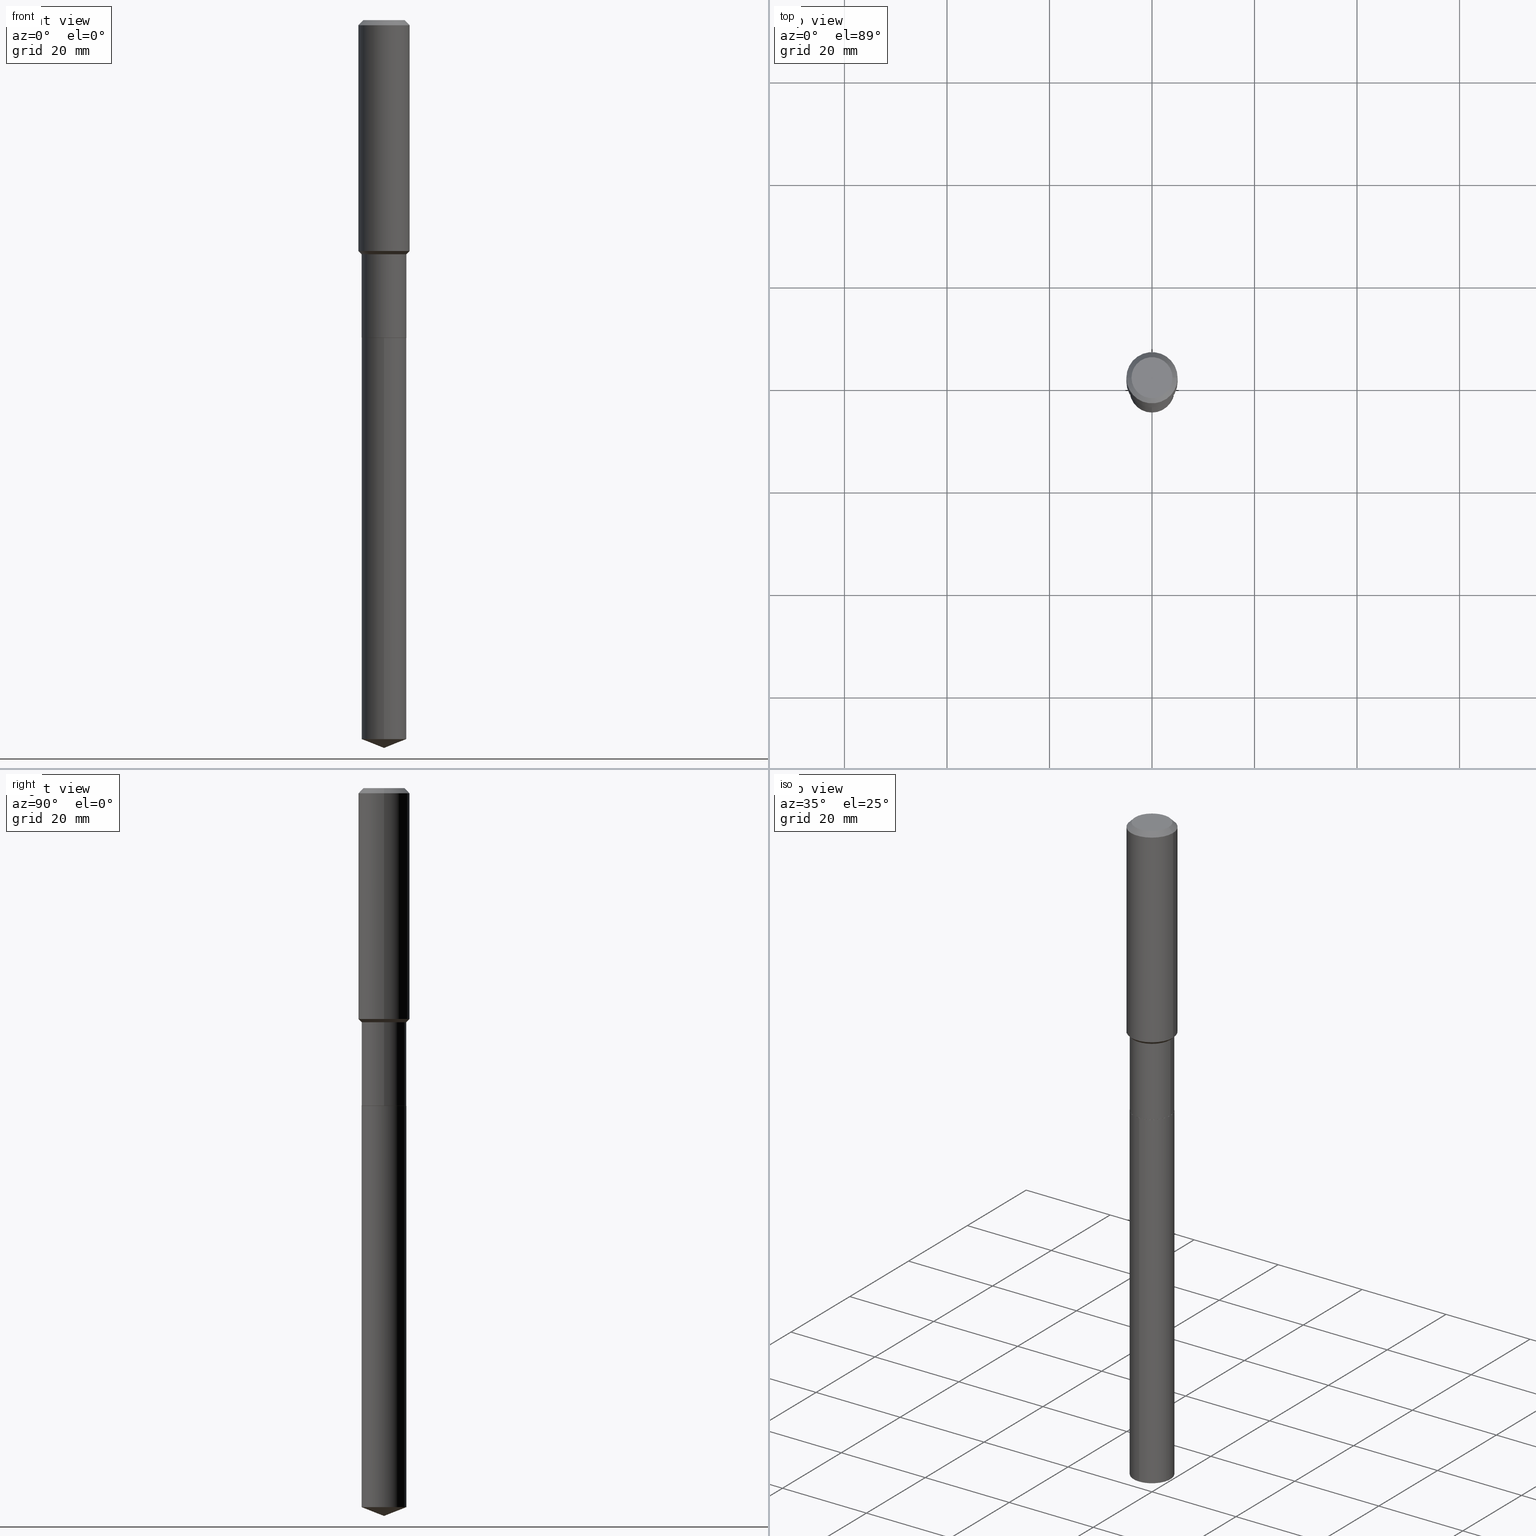
[diagram: canonical four-view strip — front | top / right | iso, engineering-drawing reading convention]
A machine part, canonical four-view strip (front | top / right | iso — engineering-drawing reading convention). The complete STEP part file that produces these views, byte-faithful:
ISO-10303-21;
HEADER;
FILE_DESCRIPTION (( 'STEP AP203' ),
    '1' );
FILE_NAME ('56490.STEP',
    '2024-04-24T18:13:39',
    ( '' ),
    ( '' ),
    'SwSTEP 2.0',
    'SolidWorks 2023',
    '' );
FILE_SCHEMA (( 'CONFIG_CONTROL_DESIGN' ));
ENDSEC;

DATA;
#1 = FACE_OUTER_BOUND ( 'NONE', #368, .T. ) ;
#2 = FACE_OUTER_BOUND ( 'NONE', #469, .T. ) ;
#3 = DIRECTION ( 'NONE',  ( -2.445468806185136597E-29, 3.491481338843145583E-15, 1.000000000000000000 ) ) ;
#4 = CARTESIAN_POINT ( 'NONE',  ( 5.967922074614205116E-29, -8.520611059312809095E-15, -2.440399999999999014 ) ) ;
#5 = DIRECTION ( 'NONE',  ( -2.445468806185136597E-29, 3.491481338843145583E-15, 1.000000000000000000 ) ) ;
#6 = DIRECTION ( 'NONE',  ( 1.000000000000000000, 0.000000000000000000, 0.000000000000000000 ) ) ;
#7 = AXIS2_PLACEMENT_3D ( 'NONE', #361, #391, #206 ) ;
#8 = EDGE_LOOP ( 'NONE', ( #474, #190, #370, #475 ) ) ;
#9 = ORGANIZATION ( 'UNSPECIFIED', 'UNSPECIFIED', '' ) ;
#10 = DIRECTION ( 'NONE',  ( -2.445468806185136597E-29, 3.491481338843145583E-15, 1.000000000000000000 ) ) ;
#11 = CARTESIAN_POINT ( 'NONE',  ( 5.969144809017297917E-29, -8.522356799982231388E-15, -2.440899999999999181 ) ) ;
#12 = VERTEX_POINT ( 'NONE', #116 ) ;
#13 = EDGE_CURVE ( 'NONE', #12, #36, #321, .T. ) ;
#14 = DIRECTION ( 'NONE',  ( 1.000000000000000000, -6.982962677686265922E-15, 4.876223630392693006E-29 ) ) ;
#15 = DIRECTION ( 'NONE',  ( 0.7071067811867889352, -2.468850131084785360E-15, 0.7071067811863060992 ) ) ;
#16 = APPLICATION_PROTOCOL_DEFINITION ( 'international standard', 'config_control_design', 1994, #232 ) ;
#17 = DIRECTION ( 'NONE',  ( -2.445468806185136877E-29, 3.491481338843145188E-15, 1.000000000000000000 ) ) ;
#18 = DATE_AND_TIME ( #431, #369 ) ;
#19 = AXIS2_PLACEMENT_3D ( 'NONE', #127, #358, #44 ) ;
#20 = CIRCLE ( 'NONE', #154, 0.1718999999999999140 ) ;
#21 = LINE ( 'NONE', #457, #188 ) ;
#22 = APPROVAL_ROLE ( '' ) ;
#23 = DIRECTION ( 'NONE',  ( -2.445456552962842404E-29, 3.491498886154880768E-15, 1.000000000000000000 ) ) ;
#24 = FACE_OUTER_BOUND ( 'NONE', #445, .T. ) ;
#25 = DIRECTION ( 'NONE',  ( 1.000000000000000000, -6.982962677686266711E-15, 4.876176775795935793E-29 ) ) ;
#26 = ORIENTED_EDGE ( 'NONE', *, *, #178, .T. ) ;
#27 = APPROVAL_ROLE ( '' ) ;
#28 = CIRCLE ( 'NONE', #338, 0.1718999999999999695 ) ;
#29 = CC_DESIGN_APPROVAL ( #349, ( #115 ) ) ;
#30 = ORIENTED_EDGE ( 'NONE', *, *, #440, .T. ) ;
#31 = ADVANCED_FACE ( 'NONE', ( #2 ), #452, .T. ) ;
#32 = EDGE_CURVE ( 'NONE', #297, #155, #50, .T. ) ;
#33 = ORIENTED_EDGE ( 'NONE', *, *, #425, .F. ) ;
#34 = ORIENTED_EDGE ( 'NONE', *, *, #113, .F. ) ;
#35 = AXIS2_PLACEMENT_3D ( 'NONE', #205, #125, #386 ) ;
#36 = VERTEX_POINT ( 'NONE', #170 ) ;
#37 = CONICAL_SURFACE ( 'NONE', #225, 0.1968500000000000250, 0.7853981633974452814 ) ;
#38 = EDGE_CURVE ( 'NONE', #162, #396, #47, .T. ) ;
#39 = DIRECTION ( 'NONE',  ( -6.982962677686266711E-15, -1.000000000000000000, 3.178415350394722068E-15 ) ) ;
#40 = ORIENTED_EDGE ( 'NONE', *, *, #352, .T. ) ;
#41 = LOCAL_TIME ( 14, 13, 39.00000000000000000, #288 ) ;
#42 = DIRECTION ( 'NONE',  ( 1.000000000000000000, -6.982962677686264344E-15, 0.000000000000000000 ) ) ;
#43 = EDGE_CURVE ( 'NONE', #233, #345, #224, .T. ) ;
#44 = DIRECTION ( 'NONE',  ( 1.000000000000000000, -6.982962677686265922E-15, 4.876176775795935793E-29 ) ) ;
#45 = CARTESIAN_POINT ( 'NONE',  ( 1.221422962771747687E-15, 0.1718999999999807626, -5.522786789241792782 ) ) ;
#46 = APPROVAL ( #157, 'UNSPECIFIED' ) ;
#47 = LINE ( 'NONE', #385, #342 ) ;
#48 = VECTOR ( 'NONE', #68, 39.37007874015748143 ) ;
#49 = EDGE_CURVE ( 'NONE', #187, #448, #305, .T. ) ;
#50 = LINE ( 'NONE', #95, #71 ) ;
#51 = DIRECTION ( 'NONE',  ( -2.445468806185136597E-29, 3.491481338843145583E-15, 1.000000000000000000 ) ) ;
#52 = PRODUCT_DEFINITION_FORMATION_WITH_SPECIFIED_SOURCE ( 'ANY', '', #86, .NOT_KNOWN. ) ;
#53 = ORIENTED_EDGE ( 'NONE', *, *, #196, .F. ) ;
#54 = CARTESIAN_POINT ( 'NONE',  ( 5.967922074614205116E-29, -8.520611059312809095E-15, -2.440399999999999014 ) ) ;
#55 = LINE ( 'NONE', #176, #453 ) ;
#56 = SECURITY_CLASSIFICATION_LEVEL ( 'unclassified' ) ;
#57 = DIRECTION ( 'NONE',  ( -2.445468806185136877E-29, 3.491481338843145188E-15, 1.000000000000000000 ) ) ;
#58 =( LENGTH_UNIT ( ) NAMED_UNIT ( * ) SI_UNIT ( $, .METRE. ) );
#59 = FACE_OUTER_BOUND ( 'NONE', #8, .T. ) ;
#60 = PERSON_AND_ORGANIZATION_ROLE ( 'design_owner' ) ;
#61 = CONICAL_SURFACE ( 'NONE', #90, 0.1713999999999999690, 0.7853981633977896726 ) ;
#62 = DIRECTION ( 'NONE',  ( 1.000000000000000000, -6.982962677686265922E-15, 0.000000000000000000 ) ) ;
#63 = DIRECTION ( 'NONE',  ( 1.000000000000000000, -6.982962677686270655E-15, 0.000000000000000000 ) ) ;
#64 = ORIENTED_EDGE ( 'NONE', *, *, #147, .T. ) ;
#65 = PERSON_AND_ORGANIZATION ( #355, #9 ) ;
#66 = ADVANCED_BREP_SHAPE_REPRESENTATION ( '56490', ( #401, #249, #246 ), #375 ) ;
#67 = DIMENSIONAL_EXPONENTS ( 1.000000000000000000, 0.000000000000000000, 0.000000000000000000, 0.000000000000000000, 0.000000000000000000, 0.000000000000000000, 0.000000000000000000 ) ;
#68 = DIRECTION ( 'NONE',  ( -6.497071151882118258E-15, -0.9304175679820243516, 0.3665012267242976907 ) ) ;
#69 = ORIENTED_EDGE ( 'NONE', *, *, #266, .F. ) ;
#70 = LINE ( 'NONE', #264, #92 ) ;
#71 = VECTOR ( 'NONE', #419, 39.37007874015748143 ) ;
#72 = AXIS2_PLACEMENT_3D ( 'NONE', #11, #172, #390 ) ;
#73 = EDGE_LOOP ( 'NONE', ( #366, #461, #259, #435 ) ) ;
#74 = ADVANCED_FACE ( 'NONE', ( #456 ), #280, .T. ) ;
#75 = ORIENTED_EDGE ( 'NONE', *, *, #263, .F. ) ;
#76 = VECTOR ( 'NONE', #354, 39.37007874015748854 ) ;
#77 = LOCAL_TIME ( 14, 13, 39.00000000000000000, #294 ) ;
#78 = ORIENTED_EDGE ( 'NONE', *, *, #186, .T. ) ;
#79 = FACE_OUTER_BOUND ( 'NONE', #270, .T. ) ;
#80 = CC_DESIGN_PERSON_AND_ORGANIZATION_ASSIGNMENT ( #150, #298, ( #52 ) ) ;
#81 = CARTESIAN_POINT ( 'NONE',  ( 0.1968500000000000250, -1.512055823412797189E-15, -0.03937000000000024508 ) ) ;
#82 = EDGE_CURVE ( 'NONE', #162, #437, #194, .T. ) ;
#83 = ORIENTED_EDGE ( 'NONE', *, *, #102, .T. ) ;
#84 = DIRECTION ( 'NONE',  ( -2.445468806185136597E-29, 3.491481338843145583E-15, 1.000000000000000000 ) ) ;
#85 = ORIENTED_EDGE ( 'NONE', *, *, #38, .F. ) ;
#86 = PRODUCT ( '56490', '56490', '', ( #359 ) ) ;
#87 = ADVANCED_FACE ( 'NONE', ( #282 ), #392, .T. ) ;
#88 = CARTESIAN_POINT ( 'NONE',  ( -0.1968500000000002192, -4.794311649429267908E-15, -1.773749999999999272 ) ) ;
#89 = CARTESIAN_POINT ( 'NONE',  ( 4.398664741685204254E-29, -6.280127484177163852E-15, -1.798699999999999521 ) ) ;
#90 = AXIS2_PLACEMENT_3D ( 'NONE', #254, #133, #428 ) ;
#91 = FACE_OUTER_BOUND ( 'NONE', #377, .T. ) ;
#92 = VECTOR ( 'NONE', #481, 39.37007874015748854 ) ;
#93 = SECURITY_CLASSIFICATION ( '', '', #56 ) ;
#94 = LINE ( 'NONE', #454, #417 ) ;
#95 = CARTESIAN_POINT ( 'NONE',  ( -0.1968500000000000250, 1.237136582792286225E-15, -0.03937000000000024508 ) ) ;
#96 = EDGE_CURVE ( 'NONE', #137, #220, #94, .T. ) ;
#97 = DIRECTION ( 'NONE',  ( -2.445468806185136597E-29, 3.491481338843145583E-15, 1.000000000000000000 ) ) ;
#98 = CARTESIAN_POINT ( 'NONE',  ( 4.337650294970884222E-29, -6.193015024773027274E-15, -1.773749999999999272 ) ) ;
#99 = AXIS2_PLACEMENT_3D ( 'NONE', #363, #23, #468 ) ;
#100 = CARTESIAN_POINT ( 'NONE',  ( 9.627810689950943645E-31, -1.374596203102555315E-16, -0.03937000000000024508 ) ) ;
#101 = ORIENTED_EDGE ( 'NONE', *, *, #352, .F. ) ;
#102 = EDGE_CURVE ( 'NONE', #364, #297, #130, .T. ) ;
#103 = CARTESIAN_POINT ( 'NONE',  ( -1.200371284294134346E-15, -0.1719000000000193429, -5.522786789241790117 ) ) ;
#104 = VECTOR ( 'NONE', #57, 39.37007874015748143 ) ;
#105 = LOCAL_TIME ( 14, 13, 39.00000000000000000, #106 ) ;
#106 = COORDINATED_UNIVERSAL_TIME_OFFSET ( 5, 0, .BEHIND. ) ;
#107 = ORIENTED_EDGE ( 'NONE', *, *, #178, .F. ) ;
#108 = ORIENTED_EDGE ( 'NONE', *, *, #186, .F. ) ;
#109 = AXIS2_PLACEMENT_3D ( 'NONE', #214, #394, #63 ) ;
#110 = APPROVAL ( #324, 'UNSPECIFIED' ) ;
#111 = AXIS2_PLACEMENT_3D ( 'NONE', #424, #141, #25 ) ;
#112 = ORIENTED_EDGE ( 'NONE', *, *, #96, .T. ) ;
#113 = EDGE_CURVE ( 'NONE', #187, #12, #21, .T. ) ;
#114 = APPLICATION_PROTOCOL_DEFINITION ( 'international standard', 'config_control_design', 1994, #269 ) ;
#115 = PRODUCT_DEFINITION ( 'UNKNOWN', '', #52, #121 ) ;
#116 = CARTESIAN_POINT ( 'NONE',  ( 1.221422962771747292E-15, 0.1718999999999914208, -2.440899999999999626 ) ) ;
#117 = DIRECTION ( 'NONE',  ( -2.445468806185136597E-29, 3.491481338843145583E-15, 1.000000000000000000 ) ) ;
#118 = VECTOR ( 'NONE', #184, 39.37007874015748143 ) ;
#119 = AXIS2_PLACEMENT_3D ( 'NONE', #156, #303, #407 ) ;
#120 = CC_DESIGN_SECURITY_CLASSIFICATION ( #93, ( #52 ) ) ;
#121 = DESIGN_CONTEXT ( 'detailed design', #232, 'design' ) ;
#122 = EDGE_CURVE ( 'NONE', #437, #442, #286, .T. ) ;
#123 = DIRECTION ( 'NONE',  ( -6.982962677686266711E-15, -1.000000000000000000, 3.178415350394722068E-15 ) ) ;
#124 = DIRECTION ( 'NONE',  ( 0.7071067811865484609, -2.468850131082267316E-15, 0.7071067811865464625 ) ) ;
#125 = DIRECTION ( 'NONE',  ( -2.445468806185136597E-29, 3.491481338843145583E-15, 1.000000000000000000 ) ) ;
#126 = CARTESIAN_POINT ( 'NONE',  ( 5.969144809017296796E-29, -8.522356799982229810E-15, -2.440899999999998737 ) ) ;
#127 = CARTESIAN_POINT ( 'NONE',  ( 8.685805640443478176E-29, -4.631943866647868288E-15, -2.440899999999999181 ) ) ;
#128 = CARTESIAN_POINT ( 'NONE',  ( 0.1718999999999999140, -7.480498768471432304E-15, -1.798699999999999521 ) ) ;
#129 = DIRECTION ( 'NONE',  ( -2.445456552962842404E-29, 3.491498886154880374E-15, 1.000000000000000000 ) ) ;
#130 = CIRCLE ( 'NONE', #360, 0.1574800000000000089 ) ;
#131 = PERSON_AND_ORGANIZATION_ROLE ( 'classification_officer' ) ;
#132 = AXIS2_PLACEMENT_3D ( 'NONE', #89, #51, #42 ) ;
#133 = DIRECTION ( 'NONE',  ( -2.445468806185136597E-29, 3.491481338843145583E-15, 1.000000000000000000 ) ) ;
#134 = ADVANCED_FACE ( 'NONE', ( #177 ), #322, .F. ) ;
#135 = PERSON_AND_ORGANIZATION ( #355, #9 ) ;
#136 = ADVANCED_FACE ( 'NONE', ( #59 ), #61, .T. ) ;
#137 = VERTEX_POINT ( 'NONE', #216 ) ;
#138 = CARTESIAN_POINT ( 'NONE',  ( 5.969144809017297917E-29, -8.522356799982231388E-15, -2.440899999999999181 ) ) ;
#139 = LINE ( 'NONE', #463, #48 ) ;
#140 = LINE ( 'NONE', #291, #118 ) ;
#141 = DIRECTION ( 'NONE',  ( -2.445468806185136597E-29, 3.491481338843145583E-15, 1.000000000000000000 ) ) ;
#142 = ORIENTED_EDGE ( 'NONE', *, *, #263, .T. ) ;
#143 = PERSON_AND_ORGANIZATION_ROLE ( 'creator' ) ;
#144 = DIRECTION ( 'NONE',  ( -2.445456552962842404E-29, 3.491498886154880374E-15, 1.000000000000000000 ) ) ;
#145 = AXIS2_PLACEMENT_3D ( 'NONE', #164, #310, #449 ) ;
#146 = VECTOR ( 'NONE', #381, 39.37007874015748143 ) ;
#147 = EDGE_CURVE ( 'NONE', #36, #12, #28, .T. ) ;
#148 = CARTESIAN_POINT ( 'NONE',  ( -8.260646227755212521E-28, 1.179414043772741541E-13, 33.77957874015748274 ) ) ;
#149 = EDGE_LOOP ( 'NONE', ( #367, #226, #193, #261 ) ) ;
#150 = PERSON_AND_ORGANIZATION ( #355, #9 ) ;
#151 = DIRECTION ( 'NONE',  ( -2.445468806185136597E-29, 3.491481338843145583E-15, 1.000000000000000000 ) ) ;
#152 = ORIENTED_EDGE ( 'NONE', *, *, #333, .T. ) ;
#153 = CIRCLE ( 'NONE', #145, 0.1718999999999999140 ) ;
#154 = AXIS2_PLACEMENT_3D ( 'NONE', #207, #426, #195 ) ;
#155 = VERTEX_POINT ( 'NONE', #326 ) ;
#156 = CARTESIAN_POINT ( 'NONE',  ( -9.427742298522567634E-47, 1.346031739168368355E-32, 3.855188123715870730E-18 ) ) ;
#157 = APPROVAL_STATUS ( 'not_yet_approved' ) ;
#158 = CARTESIAN_POINT ( 'NONE',  ( 4.398664741685204254E-29, -6.280127484177163852E-15, -1.798699999999999521 ) ) ;
#159 = ORIENTED_EDGE ( 'NONE', *, *, #38, .T. ) ;
#160 = CONICAL_SURFACE ( 'NONE', #306, 0.1718999999999999140, 0.7853981633974497223 ) ;
#161 = EDGE_CURVE ( 'NONE', #345, #437, #140, .T. ) ;
#162 = VERTEX_POINT ( 'NONE', #432 ) ;
#163 = EDGE_LOOP ( 'NONE', ( #439, #83 ) ) ;
#164 = CARTESIAN_POINT ( 'NONE',  ( 4.398664741685204254E-29, -6.280127484177163852E-15, -1.798699999999999521 ) ) ;
#165 = CARTESIAN_POINT ( 'NONE',  ( 9.627810689950943645E-31, -1.374596203102555315E-16, -0.03937000000000024508 ) ) ;
#166 = DIRECTION ( 'NONE',  ( 1.000000000000000000, -6.982962677686269077E-15, 0.000000000000000000 ) ) ;
#167 = CONICAL_SURFACE ( 'NONE', #293, 0.1968500000000000250, 0.7853981633974452814 ) ;
#168 = DIRECTION ( 'NONE',  ( 1.000000000000000000, -6.982962677686265922E-15, 0.000000000000000000 ) ) ;
#169 = DIRECTION ( 'NONE',  ( -6.982962677686266711E-15, -1.000000000000000000, 3.178415350394722068E-15 ) ) ;
#170 = CARTESIAN_POINT ( 'NONE',  ( -1.200371284294209288E-15, -0.1719000000000085182, -2.440899999999998737 ) ) ;
#171 = DIRECTION ( 'NONE',  ( -2.445468806185136597E-29, 3.491481338843145583E-15, 1.000000000000000000 ) ) ;
#172 = DIRECTION ( 'NONE',  ( 2.445456552962842404E-29, -3.491498886154880374E-15, -1.000000000000000000 ) ) ;
#173 = CC_DESIGN_PERSON_AND_ORGANIZATION_ASSIGNMENT ( #135, #460, ( #52 ) ) ;
#174 = DIRECTION ( 'NONE',  ( -2.445468806185136597E-29, 3.491481338843145583E-15, 1.000000000000000000 ) ) ;
#175 = DIRECTION ( 'NONE',  ( 1.000000000000000000, -6.982962677686266711E-15, 4.876176775795935793E-29 ) ) ;
#176 = CARTESIAN_POINT ( 'NONE',  ( 0.1968500000000000250, -1.487948651171581601E-15, -0.03937000000000024508 ) ) ;
#177 = FACE_OUTER_BOUND ( 'NONE', #163, .T. ) ;
#178 = EDGE_CURVE ( 'NONE', #155, #220, #438, .T. ) ;
#179 = EDGE_CURVE ( 'NONE', #448, #187, #313, .T. ) ;
#180 = DATE_TIME_ROLE ( 'creation_date' ) ;
#181 = CC_DESIGN_APPROVAL ( #46, ( #93 ) ) ;
#182 = CARTESIAN_POINT ( 'NONE',  ( -1.200371284294209288E-15, -0.1719000000000085182, -2.440899999999998737 ) ) ;
#183 = EDGE_LOOP ( 'NONE', ( #344, #408, #255, #234 ) ) ;
#184 = DIRECTION ( 'NONE',  ( -0.7071067811867889352, 7.493145998871226640E-15, 0.7071067811863060992 ) ) ;
#185 = EDGE_LOOP ( 'NONE', ( #108, #235, #309 ) ) ;
#186 = EDGE_CURVE ( 'NONE', #260, #187, #258, .T. ) ;
#187 = VERTEX_POINT ( 'NONE', #45 ) ;
#188 = VECTOR ( 'NONE', #129, 39.37007874015748143 ) ;
#189 = CC_DESIGN_APPROVAL ( #110, ( #52 ) ) ;
#190 = ORIENTED_EDGE ( 'NONE', *, *, #161, .T. ) ;
#191 = CARTESIAN_POINT ( 'NONE',  ( 0.1718999999999999140, -7.480498768471432304E-15, -1.798699999999999521 ) ) ;
#192 = ORIENTED_EDGE ( 'NONE', *, *, #96, .F. ) ;
#193 = ORIENTED_EDGE ( 'NONE', *, *, #196, .T. ) ;
#194 = CIRCLE ( 'NONE', #256, 0.1718999999999999417 ) ;
#195 = DIRECTION ( 'NONE',  ( 1.000000000000000000, -6.982962677686264344E-15, 0.000000000000000000 ) ) ;
#196 = EDGE_CURVE ( 'NONE', #220, #155, #402, .T. ) ;
#197 = LINE ( 'NONE', #487, #146 ) ;
#198 = EDGE_CURVE ( 'NONE', #437, #162, #387, .T. ) ;
#199 = AXIS2_PLACEMENT_3D ( 'NONE', #482, #412, #405 ) ;
#200 = CC_DESIGN_PERSON_AND_ORGANIZATION_ASSIGNMENT ( #289, #131, ( #93 ) ) ;
#201 = FACE_OUTER_BOUND ( 'NONE', #271, .T. ) ;
#202 = DIRECTION ( 'NONE',  ( 1.000000000000000000, -6.982962677686266711E-15, 4.876176775795936353E-29 ) ) ;
#203 = CARTESIAN_POINT ( 'NONE',  ( 1.350576505325825204E-28, -1.928276109187539136E-14, -5.522786789241791006 ) ) ;
#204 = CARTESIAN_POINT ( 'NONE',  ( 1.367138520165069045E-28, -1.951913886058242754E-14, -5.590499999999999581 ) ) ;
#205 = CARTESIAN_POINT ( 'NONE',  ( 0.000000000000000000, 0.000000000000000000, 0.000000000000000000 ) ) ;
#206 = DIRECTION ( 'NONE',  ( -6.982962677686266711E-15, -1.000000000000000000, 3.178415350394722068E-15 ) ) ;
#207 = CARTESIAN_POINT ( 'NONE',  ( 4.398664741685204254E-29, -6.280127484177163852E-15, -1.798699999999999521 ) ) ;
#208 = CC_DESIGN_PERSON_AND_ORGANIZATION_ASSIGNMENT ( #389, #143, ( #115 ) ) ;
#209 = FACE_OUTER_BOUND ( 'NONE', #356, .T. ) ;
#210 = CARTESIAN_POINT ( 'NONE',  ( -9.427742298522567634E-47, 1.346031739168368355E-32, 3.855188123715870730E-18 ) ) ;
#211 = FACE_OUTER_BOUND ( 'NONE', #300, .T. ) ;
#212 = LINE ( 'NONE', #128, #238 ) ;
#213 = ADVANCED_FACE ( 'NONE', ( #211 ), #318, .F. ) ;
#214 = CARTESIAN_POINT ( 'NONE',  ( 5.969144809017296796E-29, -8.522356799982229810E-15, -2.440899999999998737 ) ) ;
#215 = CYLINDRICAL_SURFACE ( 'NONE', #287, 0.1718999999999999417 ) ;
#216 = CARTESIAN_POINT ( 'NONE',  ( 0.1968500000000002192, -7.567611227875569671E-15, -1.773749999999999272 ) ) ;
#217 =( NAMED_UNIT ( * ) PLANE_ANGLE_UNIT ( ) SI_UNIT ( $, .RADIAN. ) );
#218 = LINE ( 'NONE', #182, #265 ) ;
#219 = DIRECTION ( 'NONE',  ( -2.445468806185136597E-29, 3.491481338843145583E-15, 1.000000000000000000 ) ) ;
#220 = VERTEX_POINT ( 'NONE', #81 ) ;
#221 = ORIENTED_EDGE ( 'NONE', *, *, #122, .T. ) ;
#222 = FACE_OUTER_BOUND ( 'NONE', #149, .T. ) ;
#223 = CALENDAR_DATE ( 2024, 24, 4 ) ;
#224 = CIRCLE ( 'NONE', #478, 0.1713999999999999690 ) ;
#225 = AXIS2_PLACEMENT_3D ( 'NONE', #476, #443, #436 ) ;
#226 = ORIENTED_EDGE ( 'NONE', *, *, #316, .T. ) ;
#227 = EDGE_CURVE ( 'NONE', #233, #162, #239, .T. ) ;
#228 = ADVANCED_FACE ( 'NONE', ( #201 ), #167, .T. ) ;
#229 = ORIENTED_EDGE ( 'NONE', *, *, #43, .F. ) ;
#230 = ORIENTED_EDGE ( 'NONE', *, *, #467, .T. ) ;
#231 = DATE_TIME_ROLE ( 'classification_date' ) ;
#232 = APPLICATION_CONTEXT ( 'configuration controlled 3d designs of mechanical parts and assemblies' ) ;
#233 = VERTEX_POINT ( 'NONE', #490 ) ;
#234 = ORIENTED_EDGE ( 'NONE', *, *, #440, .F. ) ;
#235 = ORIENTED_EDGE ( 'NONE', *, *, #266, .T. ) ;
#236 = CARTESIAN_POINT ( 'NONE',  ( 0.1713999999999999690, -9.719236602937656833E-15, -2.440899999999998737 ) ) ;
#237 = AXIS2_PLACEMENT_3D ( 'NONE', #4, #171, #450 ) ;
#238 = VECTOR ( 'NONE', #124, 39.37007874015748854 ) ;
#239 = LINE ( 'NONE', #236, #301 ) ;
#240 = FACE_OUTER_BOUND ( 'NONE', #337, .T. ) ;
#241 = ORIENTED_EDGE ( 'NONE', *, *, #82, .T. ) ;
#242 = CARTESIAN_POINT ( 'NONE',  ( -0.1574800000000000089, 1.168406772637159618E-15, 3.855188123707939751E-18 ) ) ;
#243 = DIRECTION ( 'NONE',  ( -2.445468806185136597E-29, 3.491481338843145583E-15, 1.000000000000000000 ) ) ;
#244 = CARTESIAN_POINT ( 'NONE',  ( -0.1713999999999999690, -7.301837323715307702E-15, -2.440899999999998737 ) ) ;
#245 = AXIS2_PLACEMENT_3D ( 'NONE', #384, #117, #175 ) ;
#246 = AXIS2_PLACEMENT_3D ( 'NONE', #278, #416, #6 ) ;
#247 = PERSON_AND_ORGANIZATION ( #355, #9 ) ;
#248 = ADVANCED_FACE ( 'NONE', ( #1 ), #312, .T. ) ;
#249 = MANIFOLD_SOLID_BREP ( 'Body-Move/Copy2[2]', #380 ) ;
#250 = DIRECTION ( 'NONE',  ( -2.445456552962842404E-29, 3.491498886154880768E-15, 1.000000000000000000 ) ) ;
#251 = CALENDAR_DATE ( 2024, 24, 4 ) ;
#252 = DIRECTION ( 'NONE',  ( -1.000000000000000000, 6.982962677686265922E-15, -4.876176775795935793E-29 ) ) ;
#253 = EDGE_CURVE ( 'NONE', #396, #442, #153, .T. ) ;
#254 = CARTESIAN_POINT ( 'NONE',  ( 5.969144809017296796E-29, -8.522356799982229810E-15, -2.440899999999998737 ) ) ;
#255 = ORIENTED_EDGE ( 'NONE', *, *, #147, .F. ) ;
#256 = AXIS2_PLACEMENT_3D ( 'NONE', #54, #3, #166 ) ;
#257 = APPROVAL_DATE_TIME ( #18, #349 ) ;
#258 = LINE ( 'NONE', #204, #76 ) ;
#259 = ORIENTED_EDGE ( 'NONE', *, *, #227, .T. ) ;
#260 = VERTEX_POINT ( 'NONE', #429 ) ;
#261 = ORIENTED_EDGE ( 'NONE', *, *, #32, .F. ) ;
#262 = SHAPE_DEFINITION_REPRESENTATION ( #329, #66 ) ;
#263 = EDGE_CURVE ( 'NONE', #137, #335, #410, .T. ) ;
#264 = CARTESIAN_POINT ( 'NONE',  ( -0.1718999999999999140, -5.058704521405552835E-15, -1.798699999999999521 ) ) ;
#265 = VECTOR ( 'NONE', #144, 39.37007874015748143 ) ;
#266 = EDGE_CURVE ( 'NONE', #260, #448, #139, .T. ) ;
#267 = ORIENTED_EDGE ( 'NONE', *, *, #272, .F. ) ;
#268 = PERSON_AND_ORGANIZATION ( #355, #9 ) ;
#269 = APPLICATION_CONTEXT ( 'configuration controlled 3d designs of mechanical parts and assemblies' ) ;
#270 = EDGE_LOOP ( 'NONE', ( #34, #395, #30, #415 ) ) ;
#271 = EDGE_LOOP ( 'NONE', ( #372, #307, #489, #26 ) ) ;
#272 = EDGE_CURVE ( 'NONE', #345, #233, #331, .T. ) ;
#273 = ORIENTED_EDGE ( 'NONE', *, *, #179, .F. ) ;
#274 = AXIS2_PLACEMENT_3D ( 'NONE', #98, #334, #466 ) ;
#275 = CIRCLE ( 'NONE', #362, 0.1968500000000002192 ) ;
#276 = CARTESIAN_POINT ( 'NONE',  ( 9.627810689950943645E-31, -1.374596203102555315E-16, -0.03937000000000024508 ) ) ;
#277 = DIRECTION ( 'NONE',  ( 0.7071067811865453523, -7.319954787623248157E-15, -0.7071067811865496822 ) ) ;
#278 = CARTESIAN_POINT ( 'NONE',  ( 0.000000000000000000, 0.000000000000000000, 0.000000000000000000 ) ) ;
#279 = ADVANCED_FACE ( 'NONE', ( #24 ), #327, .T. ) ;
#280 = CONICAL_SURFACE ( 'NONE', #470, 0.1713999999999999690, 0.7853981633977896726 ) ;
#281 = DIRECTION ( 'NONE',  ( 1.000000000000000000, -6.982962677686265922E-15, 0.000000000000000000 ) ) ;
#282 = FACE_OUTER_BOUND ( 'NONE', #183, .T. ) ;
#283 =( CONVERSION_BASED_UNIT ( 'INCH', #393 ) LENGTH_UNIT ( ) NAMED_UNIT ( #67 ) );
#284 = DIRECTION ( 'NONE',  ( 1.000000000000000000, -6.982962677686270655E-15, 0.000000000000000000 ) ) ;
#285 = ADVANCED_FACE ( 'NONE', ( #330 ), #471, .T. ) ;
#286 = LINE ( 'NONE', #325, #104 ) ;
#287 = AXIS2_PLACEMENT_3D ( 'NONE', #351, #5, #202 ) ;
#288 = COORDINATED_UNIVERSAL_TIME_OFFSET ( 5, 0, .BEHIND. ) ;
#289 = PERSON_AND_ORGANIZATION ( #355, #9 ) ;
#290 = PERSON_AND_ORGANIZATION ( #355, #9 ) ;
#291 = CARTESIAN_POINT ( 'NONE',  ( -0.1713999999999999690, -7.304486550889418114E-15, -2.440899999999998737 ) ) ;
#292 = ORIENTED_EDGE ( 'NONE', *, *, #333, .F. ) ;
#293 = AXIS2_PLACEMENT_3D ( 'NONE', #165, #343, #346 ) ;
#294 = COORDINATED_UNIVERSAL_TIME_OFFSET ( 5, 0, .BEHIND. ) ;
#295 = APPROVAL_PERSON_ORGANIZATION ( #247, #349, #22 ) ;
#296 = CC_DESIGN_DATE_AND_TIME_ASSIGNMENT ( #406, #231, ( #93 ) ) ;
#297 = VERTEX_POINT ( 'NONE', #242 ) ;
#298 = PERSON_AND_ORGANIZATION_ROLE ( 'design_supplier' ) ;
#299 = EDGE_CURVE ( 'NONE', #396, #137, #212, .T. ) ;
#300 = EDGE_LOOP ( 'NONE', ( #229, #267 ) ) ;
#301 = VECTOR ( 'NONE', #15, 39.37007874015748143 ) ;
#302 = EDGE_LOOP ( 'NONE', ( #69, #78, #273 ) ) ;
#303 = DIRECTION ( 'NONE',  ( -2.445468806185136597E-29, 3.491481338843145583E-15, 1.000000000000000000 ) ) ;
#304 = CARTESIAN_POINT ( 'NONE',  ( 5.969144809017297917E-29, -8.522356799982231388E-15, -2.440899999999999181 ) ) ;
#305 = CIRCLE ( 'NONE', #485, 0.1718999999999999695 ) ;
#306 = AXIS2_PLACEMENT_3D ( 'NONE', #158, #151, #411 ) ;
#307 = ORIENTED_EDGE ( 'NONE', *, *, #483, .F. ) ;
#308 = PRODUCT_RELATED_PRODUCT_CATEGORY ( 'detail', '', ( #86 ) ) ;
#309 = ORIENTED_EDGE ( 'NONE', *, *, #49, .F. ) ;
#310 = DIRECTION ( 'NONE',  ( -2.445468806185136597E-29, 3.491481338843145583E-15, 1.000000000000000000 ) ) ;
#311 = ADVANCED_FACE ( 'NONE', ( #91 ), #215, .T. ) ;
#312 = CYLINDRICAL_SURFACE ( 'NONE', #245, 0.1968500000000001082 ) ;
#313 = CIRCLE ( 'NONE', #99, 0.1718999999999999695 ) ;
#314 = CIRCLE ( 'NONE', #119, 0.1574800000000000089 ) ;
#315 = DIRECTION ( 'NONE',  ( -2.445456552962842404E-29, 3.491498886154880768E-15, 1.000000000000000000 ) ) ;
#316 = EDGE_CURVE ( 'NONE', #364, #220, #55, .T. ) ;
#317 = CARTESIAN_POINT ( 'NONE',  ( 5.969144809017296796E-29, -8.522356799982229810E-15, -2.440899999999998737 ) ) ;
#318 = PLANE ( 'NONE',  #19 ) ;
#319 = DIRECTION ( 'NONE',  ( -6.982962677686266711E-15, -1.000000000000000000, 6.356830700789444137E-15 ) ) ;
#320 = COORDINATED_UNIVERSAL_TIME_OFFSET ( 5, 0, .BEHIND. ) ;
#321 = CIRCLE ( 'NONE', #421, 0.1718999999999999695 ) ;
#322 = PLANE ( 'NONE',  #353 ) ;
#323 = APPROVAL_PERSON_ORGANIZATION ( #268, #46, #404 ) ;
#324 = APPROVAL_STATUS ( 'not_yet_approved' ) ;
#325 = CARTESIAN_POINT ( 'NONE',  ( -0.1718999999999999417, 1.221422962771611806E-15, -8.455649420148180377E-30 ) ) ;
#326 = CARTESIAN_POINT ( 'NONE',  ( -0.1968500000000000250, -1.766533947197883048E-15, -0.03937000000000024508 ) ) ;
#327 = CYLINDRICAL_SURFACE ( 'NONE', #111, 0.1968500000000001082 ) ;
#328 = ORIENTED_EDGE ( 'NONE', *, *, #122, .F. ) ;
#329 = PRODUCT_DEFINITION_SHAPE ( 'NONE', 'NONE',  #115 ) ;
#330 = FACE_OUTER_BOUND ( 'NONE', #302, .T. ) ;
#331 = CIRCLE ( 'NONE', #109, 0.1713999999999999690 ) ;
#332 = COORDINATED_UNIVERSAL_TIME_OFFSET ( 5, 0, .BEHIND. ) ;
#333 = EDGE_CURVE ( 'NONE', #335, #137, #275, .T. ) ;
#334 = DIRECTION ( 'NONE',  ( -2.445468806185136597E-29, 3.491481338843145583E-15, 1.000000000000000000 ) ) ;
#335 = VERTEX_POINT ( 'NONE', #88 ) ;
#336 = ORIENTED_EDGE ( 'NONE', *, *, #425, .T. ) ;
#337 = EDGE_LOOP ( 'NONE', ( #371, #230, #75, #433 ) ) ;
#338 = AXIS2_PLACEMENT_3D ( 'NONE', #138, #315, #123 ) ;
#339 = CONICAL_SURFACE ( 'NONE', #199, 99.94676754583977640, 1.195550537616118847 ) ;
#340 = DIRECTION ( 'NONE',  ( -2.445456552962842404E-29, 3.491498886154880768E-15, 1.000000000000000000 ) ) ;
#341 =( NAMED_UNIT ( * ) SI_UNIT ( $, .STERADIAN. ) SOLID_ANGLE_UNIT ( ) );
#342 = VECTOR ( 'NONE', #17, 39.37007874015748143 ) ;
#343 = DIRECTION ( 'NONE',  ( 2.445468806185136597E-29, -3.491481338843145583E-15, -1.000000000000000000 ) ) ;
#344 = ORIENTED_EDGE ( 'NONE', *, *, #179, .T. ) ;
#345 = VERTEX_POINT ( 'NONE', #244 ) ;
#346 = DIRECTION ( 'NONE',  ( -1.000000000000000000, 6.982962677686265922E-15, 0.000000000000000000 ) ) ;
#347 = CARTESIAN_POINT ( 'NONE',  ( 4.337650294970884222E-29, -6.193015024773027274E-15, -1.773749999999999272 ) ) ;
#348 = DIRECTION ( 'NONE',  ( -2.445456552962842404E-29, 3.491498886154880768E-15, 1.000000000000000000 ) ) ;
#349 = APPROVAL ( #365, 'UNSPECIFIED' ) ;
#350 = DIRECTION ( 'NONE',  ( -2.445456552962842404E-29, 3.491498886154880768E-15, 1.000000000000000000 ) ) ;
#351 = CARTESIAN_POINT ( 'NONE',  ( 0.000000000000000000, 0.000000000000000000, 0.000000000000000000 ) ) ;
#352 = EDGE_CURVE ( 'NONE', #442, #396, #20, .T. ) ;
#353 = AXIS2_PLACEMENT_3D ( 'NONE', #465, #462, #252 ) ;
#354 = DIRECTION ( 'NONE',  ( 6.611014441532064222E-15, 0.9304175679820269051, 0.3665012267242910848 ) ) ;
#355 = PERSON ( 'UNSPECIFIED', 'UNSPECIFIED', 'UNSPECIFIED', ('UNSPECIFIED'), ('UNSPECIFIED'), ('UNSPECIFIED') ) ;
#356 = EDGE_LOOP ( 'NONE', ( #64, #488 ) ) ;
#357 = PLANE ( 'NONE',  #72 ) ;
#358 = DIRECTION ( 'NONE',  ( -2.438088387897960049E-29, 3.491481338843145188E-15, 1.000000000000000000 ) ) ;
#359 = MECHANICAL_CONTEXT ( 'NONE', #269, 'mechanical' ) ;
#360 = AXIS2_PLACEMENT_3D ( 'NONE', #210, #174, #14 ) ;
#361 = CARTESIAN_POINT ( 'NONE',  ( 5.969144809017297917E-29, -8.522356799982231388E-15, -2.440899999999999181 ) ) ;
#362 = AXIS2_PLACEMENT_3D ( 'NONE', #347, #84, #168 ) ;
#363 = CARTESIAN_POINT ( 'NONE',  ( 1.350576505325825204E-28, -1.928276109187539136E-14, -5.522786789241791006 ) ) ;
#364 = VERTEX_POINT ( 'NONE', #477 ) ;
#365 = APPROVAL_STATUS ( 'not_yet_approved' ) ;
#366 = ORIENTED_EDGE ( 'NONE', *, *, #161, .F. ) ;
#367 = ORIENTED_EDGE ( 'NONE', *, *, #102, .F. ) ;
#368 = EDGE_LOOP ( 'NONE', ( #33, #152, #112, #107 ) ) ;
#369 = LOCAL_TIME ( 14, 13, 39.00000000000000000, #320 ) ;
#370 = ORIENTED_EDGE ( 'NONE', *, *, #82, .F. ) ;
#371 = ORIENTED_EDGE ( 'NONE', *, *, #253, .T. ) ;
#372 = ORIENTED_EDGE ( 'NONE', *, *, #316, .F. ) ;
#373 = APPROVAL_DATE_TIME ( #409, #46 ) ;
#374 = AXIS2_PLACEMENT_3D ( 'NONE', #276, #10, #281 ) ;
#375 =( GEOMETRIC_REPRESENTATION_CONTEXT ( 3 ) GLOBAL_UNCERTAINTY_ASSIGNED_CONTEXT ( ( #414 ) ) GLOBAL_UNIT_ASSIGNED_CONTEXT ( ( #283, #217, #341 ) ) REPRESENTATION_CONTEXT ( 'NONE', 'WORKASPACE' ) );
#376 = FACE_OUTER_BOUND ( 'NONE', #400, .T. ) ;
#377 = EDGE_LOOP ( 'NONE', ( #241, #221, #379, #85 ) ) ;
#378 = ADVANCED_FACE ( 'NONE', ( #441 ), #339, .T. ) ;
#379 = ORIENTED_EDGE ( 'NONE', *, *, #253, .F. ) ;
#380 = CLOSED_SHELL ( 'NONE', ( #136, #458, #279, #427, #311, #31, #413, #248, #228, #134, #213, #74 ) ) ;
#381 = DIRECTION ( 'NONE',  ( -2.445468806185136877E-29, 3.491481338843145188E-15, 1.000000000000000000 ) ) ;
#382 = AXIS2_PLACEMENT_3D ( 'NONE', #148, #250, #455 ) ;
#383 = ORIENTED_EDGE ( 'NONE', *, *, #467, .F. ) ;
#384 = CARTESIAN_POINT ( 'NONE',  ( 0.000000000000000000, 0.000000000000000000, 0.000000000000000000 ) ) ;
#385 = CARTESIAN_POINT ( 'NONE',  ( 0.1718999999999999417, -1.200371284294268847E-15, 8.382147877593211677E-30 ) ) ;
#386 = DIRECTION ( 'NONE',  ( 1.000000000000000000, -6.982962677686266711E-15, 4.876176775795936353E-29 ) ) ;
#387 = CIRCLE ( 'NONE', #237, 0.1718999999999999417 ) ;
#388 = APPROVAL_PERSON_ORGANIZATION ( #65, #110, #27 ) ;
#389 = PERSON_AND_ORGANIZATION ( #355, #9 ) ;
#390 = DIRECTION ( 'NONE',  ( 6.982962677686265922E-15, 1.000000000000000000, -3.491498886154880374E-15 ) ) ;
#391 = DIRECTION ( 'NONE',  ( -2.445456552962842404E-29, 3.491498886154880768E-15, 1.000000000000000000 ) ) ;
#392 = CYLINDRICAL_SURFACE ( 'NONE', #7, 0.1718999999999999695 ) ;
#393 = LENGTH_MEASURE_WITH_UNIT ( LENGTH_MEASURE( 0.02539999999999999897 ), #58 );
#394 = DIRECTION ( 'NONE',  ( -2.445468806185136597E-29, 3.491481338843145583E-15, 1.000000000000000000 ) ) ;
#395 = ORIENTED_EDGE ( 'NONE', *, *, #49, .T. ) ;
#396 = VERTEX_POINT ( 'NONE', #191 ) ;
#397 = DATE_AND_TIME ( #434, #77 ) ;
#398 = ADVANCED_FACE ( 'NONE', ( #79 ), #444, .T. ) ;
#399 = CARTESIAN_POINT ( 'NONE',  ( -0.1718999999999999140, -6.178946308973374668E-15, -1.798699999999999521 ) ) ;
#400 = EDGE_LOOP ( 'NONE', ( #383, #40, #472, #292 ) ) ;
#401 = MANIFOLD_SOLID_BREP ( 'Body-Move/Copy2[1]', #447 ) ;
#402 = CIRCLE ( 'NONE', #374, 0.1968500000000000250 ) ;
#403 = CC_DESIGN_DATE_AND_TIME_ASSIGNMENT ( #397, #180, ( #115 ) ) ;
#404 = APPROVAL_ROLE ( '' ) ;
#405 = DIRECTION ( 'NONE',  ( -6.982962677686265922E-15, -1.000000000000000000, 3.498627837350010928E-15 ) ) ;
#406 = DATE_AND_TIME ( #430, #41 ) ;
#407 = DIRECTION ( 'NONE',  ( 1.000000000000000000, -6.982962677686265922E-15, 4.876223630392693006E-29 ) ) ;
#408 = ORIENTED_EDGE ( 'NONE', *, *, #113, .T. ) ;
#409 = DATE_AND_TIME ( #223, #105 ) ;
#410 = CIRCLE ( 'NONE', #274, 0.1968500000000002192 ) ;
#411 = DIRECTION ( 'NONE',  ( 1.000000000000000000, -6.982962677686264344E-15, 0.000000000000000000 ) ) ;
#412 = DIRECTION ( 'NONE',  ( -2.445456552962842404E-29, 3.491498886154880768E-15, 1.000000000000000000 ) ) ;
#413 = ADVANCED_FACE ( 'NONE', ( #376 ), #160, .T. ) ;
#414 = UNCERTAINTY_MEASURE_WITH_UNIT (LENGTH_MEASURE( 1.000000000000000082E-05 ), #283, 'distance_accuracy_value', 'NONE');
#415 = ORIENTED_EDGE ( 'NONE', *, *, #13, .F. ) ;
#416 = DIRECTION ( 'NONE',  ( 0.000000000000000000, 0.000000000000000000, 1.000000000000000000 ) ) ;
#417 = VECTOR ( 'NONE', #420, 39.37007874015748143 ) ;
#418 = CARTESIAN_POINT ( 'NONE',  ( 5.969144809017297917E-29, -8.522356799982231388E-15, -2.440899999999999181 ) ) ;
#419 = DIRECTION ( 'NONE',  ( -0.7071067811865453523, 2.468850131082234184E-15, -0.7071067811865496822 ) ) ;
#420 = DIRECTION ( 'NONE',  ( -2.445468806185136877E-29, 3.491481338843145188E-15, 1.000000000000000000 ) ) ;
#421 = AXIS2_PLACEMENT_3D ( 'NONE', #418, #348, #169 ) ;
#422 = CONICAL_SURFACE ( 'NONE', #132, 0.1718999999999999140, 0.7853981633974497223 ) ;
#423 = DIRECTION ( 'NONE',  ( 1.000000000000000000, -6.982962677686270655E-15, 0.000000000000000000 ) ) ;
#424 = CARTESIAN_POINT ( 'NONE',  ( 0.000000000000000000, 0.000000000000000000, 0.000000000000000000 ) ) ;
#425 = EDGE_CURVE ( 'NONE', #335, #155, #197, .T. ) ;
#426 = DIRECTION ( 'NONE',  ( -2.445468806185136597E-29, 3.491481338843145583E-15, 1.000000000000000000 ) ) ;
#427 = ADVANCED_FACE ( 'NONE', ( #240 ), #422, .T. ) ;
#428 = DIRECTION ( 'NONE',  ( 1.000000000000000000, -6.982962677686270655E-15, 0.000000000000000000 ) ) ;
#429 = CARTESIAN_POINT ( 'NONE',  ( 1.367132485933876902E-28, -1.951922452304885831E-14, -5.590499999999999581 ) ) ;
#430 = CALENDAR_DATE ( 2024, 24, 4 ) ;
#431 = CALENDAR_DATE ( 2024, 24, 4 ) ;
#432 = CARTESIAN_POINT ( 'NONE',  ( 0.1718999999999999417, -9.720982343607079126E-15, -2.440399999999999014 ) ) ;
#433 = ORIENTED_EDGE ( 'NONE', *, *, #299, .F. ) ;
#434 = CALENDAR_DATE ( 2024, 24, 4 ) ;
#435 = ORIENTED_EDGE ( 'NONE', *, *, #198, .F. ) ;
#436 = DIRECTION ( 'NONE',  ( -1.000000000000000000, 6.982962677686265922E-15, 0.000000000000000000 ) ) ;
#437 = VERTEX_POINT ( 'NONE', #484 ) ;
#438 = CIRCLE ( 'NONE', #451, 0.1968500000000000250 ) ;
#439 = ORIENTED_EDGE ( 'NONE', *, *, #483, .T. ) ;
#440 = EDGE_CURVE ( 'NONE', #448, #36, #218, .T. ) ;
#441 = FACE_OUTER_BOUND ( 'NONE', #185, .T. ) ;
#442 = VERTEX_POINT ( 'NONE', #399 ) ;
#443 = DIRECTION ( 'NONE',  ( 2.445468806185136597E-29, -3.491481338843145583E-15, -1.000000000000000000 ) ) ;
#444 = CYLINDRICAL_SURFACE ( 'NONE', #480, 0.1718999999999999695 ) ;
#445 = EDGE_LOOP ( 'NONE', ( #142, #336, #53, #192 ) ) ;
#446 = ADVANCED_FACE ( 'NONE', ( #209 ), #357, .F. ) ;
#447 = CLOSED_SHELL ( 'NONE', ( #87, #285, #378, #398, #446 ) ) ;
#448 = VERTEX_POINT ( 'NONE', #103 ) ;
#449 = DIRECTION ( 'NONE',  ( 1.000000000000000000, -6.982962677686264344E-15, 0.000000000000000000 ) ) ;
#450 = DIRECTION ( 'NONE',  ( 1.000000000000000000, -6.982962677686269077E-15, 0.000000000000000000 ) ) ;
#451 = AXIS2_PLACEMENT_3D ( 'NONE', #100, #219, #62 ) ;
#452 = CYLINDRICAL_SURFACE ( 'NONE', #35, 0.1718999999999999417 ) ;
#453 = VECTOR ( 'NONE', #277, 39.37007874015748143 ) ;
#454 = CARTESIAN_POINT ( 'NONE',  ( 0.1968500000000001082, -1.374596203102542397E-15, 9.598753983154305062E-30 ) ) ;
#455 = DIRECTION ( 'NONE',  ( -6.982962677686265922E-15, -1.000000000000000000, 3.498627837350010928E-15 ) ) ;
#456 = FACE_OUTER_BOUND ( 'NONE', #73, .T. ) ;
#457 = CARTESIAN_POINT ( 'NONE',  ( 1.221422962771671562E-15, 0.1718999999999914485, -2.440899999999999626 ) ) ;
#458 = ADVANCED_FACE ( 'NONE', ( #222 ), #37, .T. ) ;
#459 = CC_DESIGN_PERSON_AND_ORGANIZATION_ASSIGNMENT ( #290, #60, ( #86 ) ) ;
#460 = PERSON_AND_ORGANIZATION_ROLE ( 'creator' ) ;
#461 = ORIENTED_EDGE ( 'NONE', *, *, #272, .T. ) ;
#462 = DIRECTION ( 'NONE',  ( 2.438088387897960049E-29, -3.491481338843145188E-15, -1.000000000000000000 ) ) ;
#463 = CARTESIAN_POINT ( 'NONE',  ( 1.367132485933876678E-28, -1.951922452304885831E-14, -5.590499999999999581 ) ) ;
#464 = DATE_AND_TIME ( #251, #486 ) ;
#465 = CARTESIAN_POINT ( 'NONE',  ( -4.713871149261283817E-47, 6.730158695841841775E-33, 1.927594061857935365E-18 ) ) ;
#466 = DIRECTION ( 'NONE',  ( 1.000000000000000000, -6.982962677686265922E-15, 0.000000000000000000 ) ) ;
#467 = EDGE_CURVE ( 'NONE', #442, #335, #70, .T. ) ;
#468 = DIRECTION ( 'NONE',  ( -6.982962677686266711E-15, -1.000000000000000000, 6.356830700789444137E-15 ) ) ;
#469 = EDGE_LOOP ( 'NONE', ( #328, #479, #159, #101 ) ) ;
#470 = AXIS2_PLACEMENT_3D ( 'NONE', #126, #97, #284 ) ;
#471 = CONICAL_SURFACE ( 'NONE', #382, 99.94676754583977640, 1.195550537616118847 ) ;
#472 = ORIENTED_EDGE ( 'NONE', *, *, #299, .T. ) ;
#473 = APPROVAL_DATE_TIME ( #464, #110 ) ;
#474 = ORIENTED_EDGE ( 'NONE', *, *, #43, .T. ) ;
#475 = ORIENTED_EDGE ( 'NONE', *, *, #227, .F. ) ;
#476 = CARTESIAN_POINT ( 'NONE',  ( 9.627810689950943645E-31, -1.374596203102555315E-16, -0.03937000000000024508 ) ) ;
#477 = CARTESIAN_POINT ( 'NONE',  ( 0.1574800000000000089, -1.284169937930321189E-15, 3.855188123724205385E-18 ) ) ;
#478 = AXIS2_PLACEMENT_3D ( 'NONE', #317, #243, #423 ) ;
#479 = ORIENTED_EDGE ( 'NONE', *, *, #198, .T. ) ;
#480 = AXIS2_PLACEMENT_3D ( 'NONE', #304, #340, #39 ) ;
#481 = DIRECTION ( 'NONE',  ( -0.7071067811865484609, 7.493145998870357316E-15, 0.7071067811865464625 ) ) ;
#482 = CARTESIAN_POINT ( 'NONE',  ( -8.260646227755212521E-28, 1.179414043772741541E-13, 33.77957874015748274 ) ) ;
#483 = EDGE_CURVE ( 'NONE', #297, #364, #314, .T. ) ;
#484 = CARTESIAN_POINT ( 'NONE',  ( -0.1718999999999999417, -6.178946308973374668E-15, -2.440399999999999014 ) ) ;
#485 = AXIS2_PLACEMENT_3D ( 'NONE', #203, #350, #319 ) ;
#486 = LOCAL_TIME ( 14, 13, 39.00000000000000000, #332 ) ;
#487 = CARTESIAN_POINT ( 'NONE',  ( -0.1968500000000001082, 1.398703375343757985E-15, -9.682923725166787881E-30 ) ) ;
#488 = ORIENTED_EDGE ( 'NONE', *, *, #13, .T. ) ;
#489 = ORIENTED_EDGE ( 'NONE', *, *, #32, .T. ) ;
#490 = CARTESIAN_POINT ( 'NONE',  ( 0.1713999999999999690, -9.719236602937656833E-15, -2.440899999999998737 ) ) ;
ENDSEC;
END-ISO-10303-21;
